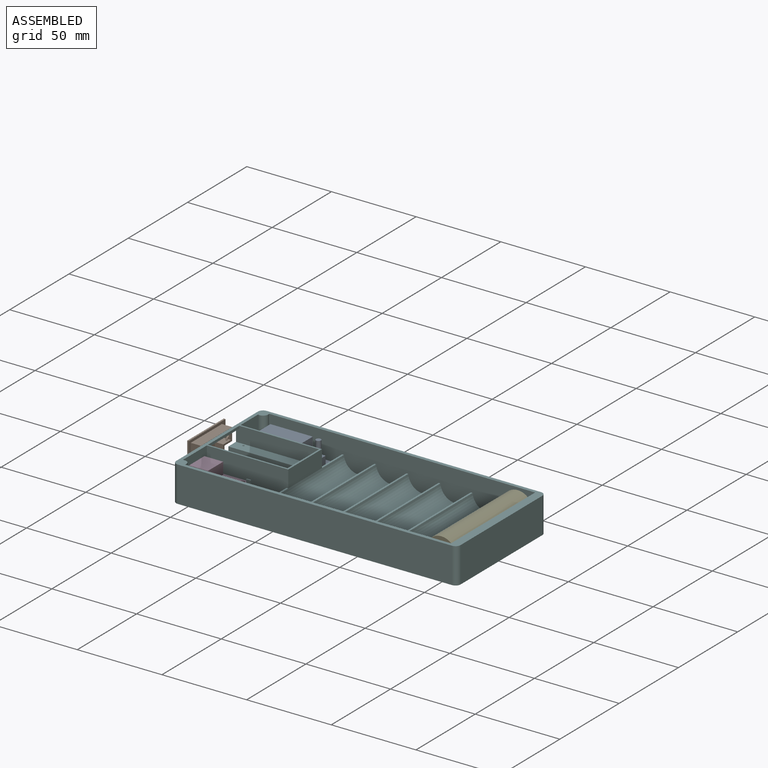
[diagram: assembled view]
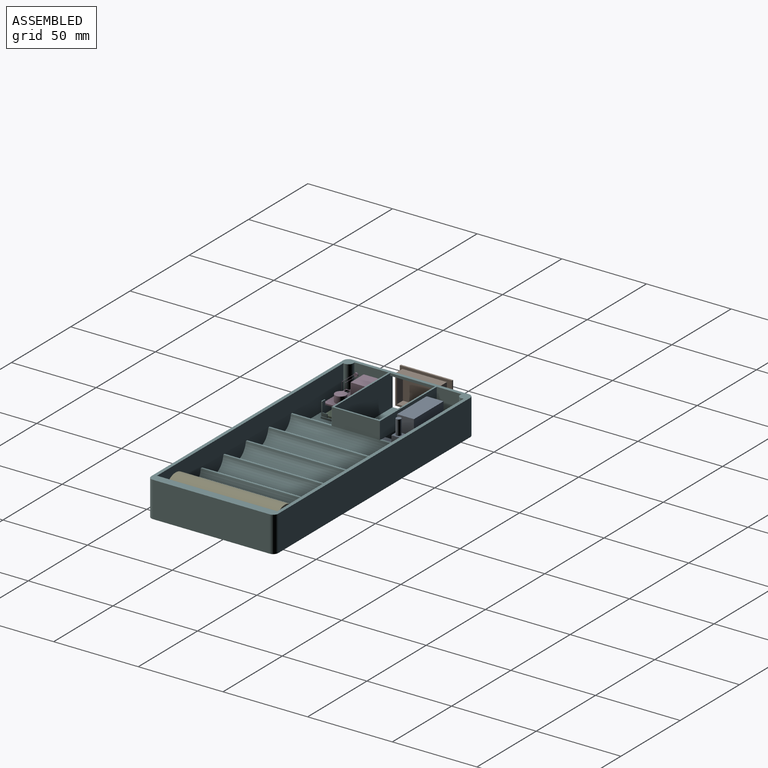
[diagram: assembled view, second angle]
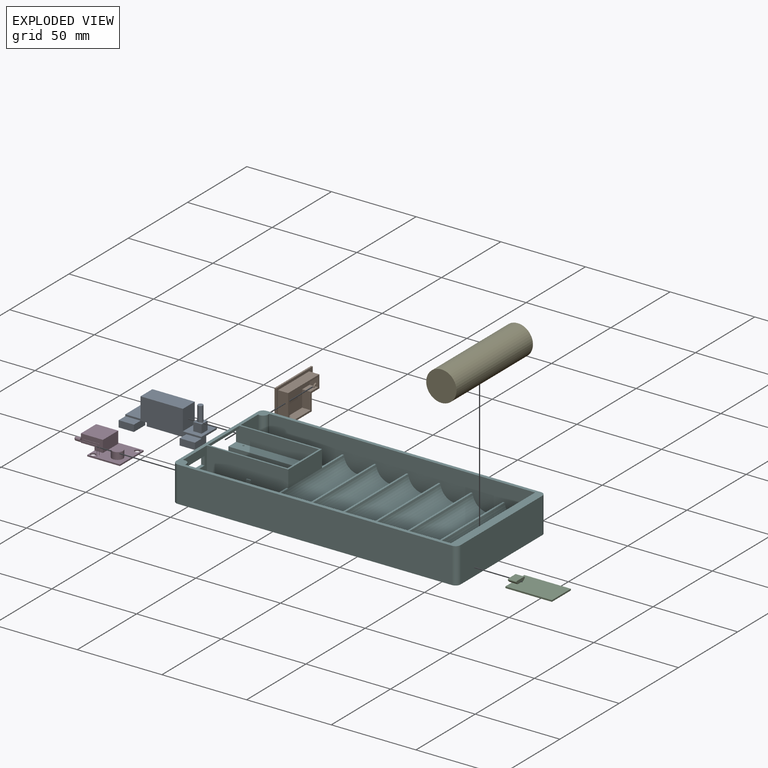
[diagram: exploded view]
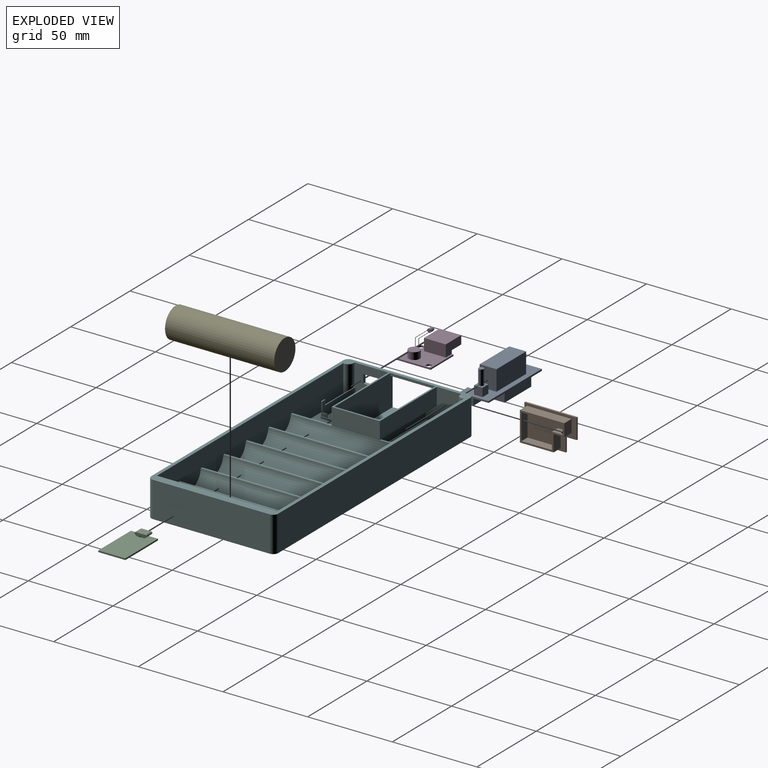
[diagram: exploded view, second angle]
ASSEMBLY  parts=6 mates=9
PART A: 31 faces, bbox 45x18.6x19.8 mm
  f0: plane 45x13mm, normal (0,0,1), area 310mm2, adj f2,f3,f4,f5,f20,f21,f22,f24
  f1: plane 45x13mm, normal (0,0,-1), area 337.5mm2, adj f2,f3,f4,f5,f6,f7,f8,f12
  f2: plane 45x13mm, normal (0,-1,0), area 345mm2, adj f0,f1,f3,f5,f10,f15,f20,f21
  f3: plane 18.6x4.9mm, normal (1,0,0), area 50.4mm2, adj f0,f1,f2,f4,f10,f11,f13,f14
  f4: plane 45x6mm, normal (0,1,0), area 157.5mm2, adj f0,f1,f3,f5,f6,f7,f9
  f5: plane 18.6x4.9mm, normal (-1,0,0), area 50.4mm2, adj f0,f1,f2,f4,f15,f16,f18,f19
  f6: plane 7.8x5mm, normal (-1,0,0), area 39mm2, adj f1,f4,f8,f9
  f7: plane 7.8x5mm, normal (1,0,0), area 39mm2, adj f1,f4,f8,f9
  f8: plane 22.5x5mm, normal (0,-1,0), area 112.5mm2, adj f1,f6,f7,f9
  f9: plane 22.5x7.8mm, normal (0,0,-1), area 175.5mm2, adj f4,f6,f7,f8
  f10: plane 9x5.6mm, normal (0,0,1), area 50.4mm2, adj f2,f3,f11,f12
  f11: plane 9x3.9mm, normal (0,-1,0), area 35.1mm2, adj f3,f10,f12,f14
  f12: plane 9.6x3.9mm, normal (-1,0,0), area 37.4mm2, adj f1,f10,f11,f13,f14
  f13: plane 9x3.9mm, normal (0,1,0), area 35.1mm2, adj f1,f3,f12,f14
  f14: plane 9.6x9mm, normal (0,0,-1), area 86.4mm2, adj f3,f11,f12,f13
  f15: plane 9x5.6mm, normal (0,0,1), area 50.4mm2, adj f2,f5,f17,f18
  f16: plane 9x3.9mm, normal (0,1,0), area 35.1mm2, adj f1,f5,f17,f19
  f17: plane 9.6x3.9mm, normal (1,0,0), area 37.4mm2, adj f1,f15,f16,f18,f19
  f18: plane 9x3.9mm, normal (0,-1,0), area 35.1mm2, adj f5,f15,f17,f19
  f19: plane 9.6x9mm, normal (0,0,-1), area 86.4mm2, adj f5,f16,f17,f18
  f20: plane 12x10mm, normal (-1,0,0), area 120mm2, adj f0,f2,f22,f23
  f21: plane 12x10mm, normal (1,0,0), area 120mm2, adj f0,f2,f22,f23
  f22: plane 25x12mm, normal (0,1,0), area 300mm2, adj f0,f20,f21,f23
  f23: plane 25x10mm, normal (0,0,1), area 250mm2, adj f2,f20,f21,f22
  f24: plane 5x5mm, normal (0,-1,0), area 25mm2, adj f0,f25,f27,f28
  f25: plane 5x5mm, normal (1,0,0), area 25mm2, adj f0,f24,f26,f28
  f26: plane 5x5mm, normal (0,1,0), area 25mm2, adj f0,f25,f27,f28
  f27: plane 5x5mm, normal (-1,0,0), area 25mm2, adj f0,f24,f26,f28
  f28: plane 5x5mm, normal (0,0,1), area 17.9mm2, adj f24,f25,f26,f27,f29
  f29: cylinder r=1.5mm len=8.8mm, axis (0,0,-1), area 82.9mm2, adj f28,f30
  f30: plane 3x3mm, normal (0,0,1), area 7.1mm2, adj f29
PART B: 23 faces, bbox 30.8x7x20.3 mm
  f0: plane 26.3x17.3mm, normal (0,1,0), area 83.2mm2, adj f1,f2,f3,f4,f5,f6,f7,f8
  f1: plane 19.9x6mm, normal (0,0,-1), area 119.4mm2, adj f0,f2,f6,f22
  f2: plane 17.3x6mm, normal (1,0,0), area 103.8mm2, adj f0,f1,f3,f22
  f3: plane 26.3x6mm, normal (0,0,1), area 157.8mm2, adj f0,f2,f4,f22
  f4: plane 7.5x6mm, normal (-1,0,0), area 45mm2, adj f0,f3,f5,f22
  f5: plane 6.4x6mm, normal (0,0,-1), area 38.4mm2, adj f0,f4,f6,f22
  f6: plane 9.8x6mm, normal (-1,0,0), area 58.8mm2, adj f0,f1,f5,f22
  f7: plane 17.9x5mm, normal (0,0,1), area 89.5mm2, adj f0,f8,f12,f13
  f8: plane 15.3x5mm, normal (-1,0,0), area 76.5mm2, adj f0,f7,f9,f13
  f9: plane 24.3x5mm, normal (0,0,-1), area 121.5mm2, adj f0,f8,f10,f13
  f10: plane 5.5x5mm, normal (1,0,0), area 26.8mm2, adj f0,f9,f11,f13,f14
  f11: plane 6.4x5mm, normal (0,0,1), area 31.3mm2, adj f0,f10,f12,f13,f14
  f12: plane 9.8x5mm, normal (1,0,0), area 49mm2, adj f0,f7,f11,f13
  f13: plane 24.3x15.3mm, normal (0,1,0), area 309.1mm2, adj f7,f8,f9,f10,f11,f12
  f14: torus R=1.48mm, axis (0,1,0), area 7.1mm2, adj f10,f11
  f15: plane 12x1mm, normal (-1,0,0), area 12mm2, adj f16,f20,f21,f22
  f16: plane 6.4x1mm, normal (0,0,-1), area 6.4mm2, adj f15,f17,f21,f22
  f17: plane 8.3x1mm, normal (-1,0,0), area 8.3mm2, adj f16,f18,f21,f22
  f18: plane 24.4x1mm, normal (0,0,-1), area 24.4mm2, adj f17,f19,f21,f22
  f19: plane 20.3x1mm, normal (1,0,0), area 20.3mm2, adj f18,f20,f21,f22
  f20: plane 30.8x1mm, normal (0,0,1), area 30.8mm2, adj f15,f19,f21,f22
  f21: plane 30.8x20.3mm, normal (0,-1,0), area 572.1mm2, adj f15,f16,f17,f18,f19,f20
  f22: plane 30.8x20.3mm, normal (0,1,0), area 179.9mm2, adj f1,f2,f3,f4,f5,f6,f15,f16
PART C: 20 faces, bbox 29.1x16x2.9 mm
  f0: plane 27.5x16mm, normal (0,0,1), area 422.6mm2, adj f1,f2,f3,f4,f6,f7,f8,f11
  f1: plane 16x0.9mm, normal (1,0,0), area 14.4mm2, adj f0,f2,f4,f5
  f2: plane 27.5x0.9mm, normal (0,1,0), area 24.7mm2, adj f0,f1,f3,f5
  f3: plane 16x0.9mm, normal (-1,0,0), area 14.4mm2, adj f0,f2,f4,f5,f10
  f4: plane 27.5x0.9mm, normal (0,-1,0), area 24.8mm2, adj f0,f1,f3,f5
  f5: plane 27.5x16mm, normal (0,0,-1), area 440mm2, adj f1,f2,f3,f4
  f6: plane 4.67x2mm, normal (1,0,0), area 9.3mm2, adj f0,f7,f8,f9
  f7: plane 2x0.1mm, normal (0,1,0), area 0.2mm2, adj f0,f6,f9,f11
  f8: plane 2x0.1mm, normal (0,-1,0), area 0.2mm2, adj f0,f6,f9,f19
  f9: plane 6x5.1mm, normal (0,0,1), area 30.5mm2, adj f6,f7,f8,f11,f14,f15,f18,f19
  f10: plane 5x1.62mm, normal (0,0,-1), area 8.1mm2, adj f3,f12,f17,f18
  f11: plane 2x1.17mm, normal (1,0,0), area 1.7mm2, adj f0,f7,f9,f15,f16,f17
  f12: plane 5x1mm, normal (0,-0.71,-0.71), area 7.1mm2, adj f0,f10,f13,f18,f19
  f13: plane 5x0.6mm, normal (0,-1,0), area 3mm2, adj f12,f14,f18,f19
  f14: plane 5x0.5mm, normal (0,-0.62,0.78), area 3.2mm2, adj f9,f13,f18,f19
  f15: plane 5x0.5mm, normal (0,0.62,0.78), area 3.2mm2, adj f9,f11,f16,f18
  f16: plane 5x0.6mm, normal (0,1,0), area 3mm2, adj f11,f15,f17,f18
  f17: plane 5x1mm, normal (0,0.71,-0.71), area 7.1mm2, adj f0,f10,f11,f16,f18
  f18: plane 7x2mm, normal (-1,0,0), area 12.8mm2, adj f9,f10,f12,f13,f14,f15,f16,f17
  f19: plane 2x1.17mm, normal (1,0,0), area 1.7mm2, adj f0,f8,f9,f12,f13,f14
PART D: 48 faces, bbox 28x20x7.9 mm
  f0: plane 5.8x0.1mm, normal (-1,0,0), area 0.6mm2, adj f2,f28,f33,f35
  f1: plane 5.8x0.1mm, normal (-1,0,0), area 0.6mm2, adj f2,f27,f29,f31
  f2: plane 20x19.3mm, normal (0,0,1), area 274.1mm2, adj f0,f1,f3,f4,f5,f6,f7,f8
  f3: plane 19.3x0.85mm, normal (0,1,0), area 16.4mm2, adj f2,f4,f8,f9
  f4: plane 20.02x0.87mm, normal (-1,0,0), area 17mm2, adj f2,f3,f5,f9,f12
  f5: plane 19.3x0.85mm, normal (0,-1,0), area 16.4mm2, adj f2,f4,f8,f9
  f6: cylinder r=1.5mm len=3mm, axis (0,0,-1), area 8mm2, adj f2,f9
  f7: cylinder r=1.5mm len=3mm, axis (0,0,-1), area 8mm2, adj f2,f9
  f8: plane 20x0.85mm, normal (1,0,0), area 17mm2, adj f2,f3,f5,f9
  f9: plane 20x19.3mm, normal (0,0,-1), area 371.9mm2, adj f3,f4,f5,f6,f7,f8
  f10: plane 12.9x7mm, normal (1,0,0), area 90.3mm2, adj f2,f11,f13,f16
  f11: plane 13x7mm, normal (0,1,0), area 75mm2, adj f2,f10,f12,f14,f15,f16
  f12: plane 12.92x2.02mm, normal (-1,0,0), area 25.8mm2, adj f4,f11,f13,f14
  f13: plane 13x7mm, normal (0,-1,0), area 75mm2, adj f2,f10,f12,f14,f15,f16
  f14: plane 12.9x8.01mm, normal (0,0,-1), area 103.3mm2, adj f11,f12,f13,f15
  f15: plane 12.9x5mm, normal (-1,0,0), area 64.5mm2, adj f11,f13,f14,f16
  f16: plane 13x12.9mm, normal (0,0,1), area 167.7mm2, adj f10,f11,f13,f15
  f17: cylinder r=3.25mm len=6.5mm, axis (0,0,-1), area 84.7mm2, adj f2,f18
  f18: plane 6.5x6.5mm, normal (0,0,1), area 33.2mm2, adj f17
  f19: plane 10.15x5.95mm, normal (0,1,0), area 1.6mm2, adj f2,f29,f30,f41,f42,f45
  f20: plane 10.15x5.95mm, normal (0,-1,0), area 1.6mm2, adj f2,f31,f32,f43,f44,f46
  f21: plane 6x0.1mm, normal (1,0,0), area 0.6mm2, adj f2,f22,f42,f44
  f22: plane 10.2x0.1mm, normal (0,0,1), area 1mm2, adj f21,f41,f43,f46
  f23: plane 6x0.1mm, normal (1,0,0), area 0.6mm2, adj f2,f26,f38,f40
  f24: plane 10.15x5.95mm, normal (0,1,0), area 1.6mm2, adj f2,f33,f34,f37,f38,f46
  f25: plane 10.15x5.95mm, normal (0,-1,0), area 1.6mm2, adj f2,f35,f36,f39,f40,f45
  f26: plane 10.2x0.1mm, normal (0,0,1), area 1mm2, adj f23,f37,f39,f46
  f27: plane 10x0.1mm, normal (0,0,-1), area 1mm2, adj f1,f30,f32,f46
  f28: plane 10x0.1mm, normal (0,0,-1), area 1mm2, adj f0,f34,f36,f46
  f29: cylinder r=0.05mm len=5.85mm, axis (0,0,1), area 0.5mm2, adj f1,f2,f19,f30
  f30: cylinder r=0.05mm len=10.05mm, axis (-1,0,0), area 0.8mm2, adj f19,f27,f29,f46
  f31: cylinder r=0.05mm len=5.85mm, axis (0,0,-1), area 0.5mm2, adj f1,f2,f20,f32
  f32: cylinder r=0.05mm len=10.05mm, axis (1,0,0), area 0.8mm2, adj f20,f27,f31,f46
  f33: cylinder r=0.05mm len=5.85mm, axis (0,0,-1), area 0.5mm2, adj f0,f2,f24,f34
  f34: cylinder r=0.05mm len=10.05mm, axis (1,0,0), area 0.8mm2, adj f24,f28,f33,f46
  f35: cylinder r=0.05mm len=5.85mm, axis (0,0,1), area 0.5mm2, adj f0,f2,f25,f36
  f36: cylinder r=0.05mm len=10.05mm, axis (-1,0,0), area 0.8mm2, adj f25,f28,f35,f46
  f37: cylinder r=0.05mm len=10.2mm, axis (1,0,0), area 0.8mm2, adj f24,f26,f38,f46
  f38: cylinder r=0.05mm len=6mm, axis (0,0,1), area 0.5mm2, adj f2,f23,f24,f37
  f39: cylinder r=0.05mm len=10.2mm, axis (-1,0,0), area 0.8mm2, adj f25,f26,f40,f46
  f40: cylinder r=0.05mm len=6mm, axis (0,0,-1), area 0.5mm2, adj f2,f23,f25,f39
  f41: cylinder r=0.05mm len=10.2mm, axis (1,0,0), area 0.8mm2, adj f19,f22,f42,f46
  f42: cylinder r=0.05mm len=6mm, axis (0,0,-1), area 0.5mm2, adj f2,f19,f21,f41
  f43: cylinder r=0.05mm len=10.2mm, axis (-1,0,0), area 0.8mm2, adj f20,f22,f44,f46
  f44: cylinder r=0.05mm len=6mm, axis (0,0,1), area 0.5mm2, adj f2,f20,f21,f43
  f45: cylinder r=1.1mm len=2.5mm, axis (1,0,0), area 17.3mm2, adj f19,f25,f46,f47
  f46: plane 2.21x2.21mm, normal (1,0,0), area 3.7mm2, adj f20,f22,f24,f26,f27,f28,f30,f32
  f47: sphere r=1.1mm, area 7.6mm2, adj f45
PART E: 3 faces, bbox 17.9x64.5x17.9 mm
  f0: cylinder r=8.95mm len=64.5mm, axis (0,1,0), area 3627.1mm2, adj f1,f2
  f1: plane 17.9x17.9mm, normal (0,-1,0), area 251.6mm2, adj f0
  f2: plane 17.9x17.9mm, normal (0,1,0), area 251.6mm2, adj f0
PART F: 82 faces, bbox 168x75x21 mm
  f0: plane 25.4x0.6mm, normal (0,0,1), area 15.2mm2, adj f4,f16,f60,f80
  f1: plane 25.4x0.6mm, normal (0,0,1), area 15mm2, adj f15,f16,f56,f58,f78
  f2: plane 28x16.5mm, normal (0,0,1), area 459.6mm2, adj f4,f16,f58,f69,f70,f72,f73,f75
  f3: plane 47x24mm, normal (0,0,1), area 609.8mm2, adj f14,f15,f16,f19,f56,f60,f61,f76
  f4: plane 28x9mm, normal (0,-1,0), area 174.6mm2, adj f0,f2,f16,f59,f72,f74,f80,f81
  f5: plane 26.5x1.5mm, normal (1,0,0), area 39.8mm2, adj f7,f20,f62,f67
  f6: plane 49x6.5mm, normal (0,0,1), area 317.7mm2, adj f7,f8,f12,f17,f68
  f7: plane 49x9.1mm, normal (0,-1,0), area 442.9mm2, adj f5,f6,f12,f17,f20,f67
  f8: plane 49x9.9mm, normal (0,-1,0), area 485.1mm2, adj f6,f12,f13,f17
  f9: plane 21.17x19mm, normal (1,0,0), area 336.6mm2, adj f11,f20,f43,f63,f64,f65
  f10: plane 18.5x1.06mm, normal (0,0,1), area 19.5mm2, adj f18,f27,f29,f65
  f11: plane 47x25mm, normal (0,0,1), area 1161mm2, adj f9,f18,f27,f43,f63
  f12: plane 26.5x19mm, normal (-1,0,0), area 439.2mm2, adj f6,f7,f8,f13,f20,f62
  f13: plane 49x20mm, normal (0,0,1), area 980mm2, adj f8,f12,f17,f62
  f14: plane 24x8.9mm, normal (-1,0,0), area 213.6mm2, adj f3,f19,f28,f61
  f15: cylinder r=3mm len=19mm, axis (0,0,-1), area 116mm2, adj f1,f3,f16,f19,f20,f56
  f16: plane 20.17x19mm, normal (1,0,0), area 294.6mm2, adj f0,f1,f2,f3,f4,f15,f20,f44
  f17: plane 69x21mm, normal (-1,0,0), area 968.1mm2, adj f6,f7,f8,f13,f20,f24,f39,f40
  f18: plane 157.17x19mm, normal (0,-1,0), area 2658.5mm2, adj f10,f11,f20,f25,f26,f27,f29,f30
  f19: plane 157.17x19mm, normal (0,1,0), area 2658.5mm2, adj f3,f14,f15,f20,f25,f26,f28,f29
  f20: plane 168x75mm, normal (0,0,1), area 1313.3mm2, adj f5,f7,f9,f12,f15,f16,f17,f18
  f21: plane 162x21mm, normal (0,1,0), area 3402mm2, adj f20,f24,f39,f42
  f22: plane 162x21mm, normal (0,-1,0), area 3402mm2, adj f20,f24,f40,f41
  f23: plane 69x21mm, normal (1,0,0), area 1449mm2, adj f20,f24,f41,f42
  f24: plane 168x75mm, normal (0,0,-1), area 12592.3mm2, adj f17,f21,f22,f23,f39,f40,f41,f42
  f25: cylinder r=9mm len=71mm, axis (0,-1,0), area 1906.7mm2, adj f18,f19,f26,f37
  f26: plane 71x10.1mm, normal (-1,0,0), area 717.1mm2, adj f18,f19,f20,f25
  f27: plane 25x8.9mm, normal (-1,0,0), area 222.5mm2, adj f10,f11,f18,f63,f64
  f28: plane 24x1.06mm, normal (0,0,1), area 25.3mm2, adj f14,f19,f29,f61
  f29: cylinder r=9mm len=71mm, axis (0,-1,0), area 1906.7mm2, adj f10,f18,f19,f28,f30,f66
  f30: plane 71x1.06mm, normal (0,0,1), area 75mm2, adj f18,f19,f29,f31
  f31: cylinder r=9mm len=71mm, axis (0,-1,0), area 1906.7mm2, adj f18,f19,f30,f32
  f32: plane 71x1.06mm, normal (0,0,1), area 75mm2, adj f18,f19,f31,f33
  f33: cylinder r=9mm len=71mm, axis (0,-1,0), area 1906.7mm2, adj f18,f19,f32,f34
  f34: plane 71x1.06mm, normal (0,0,1), area 75mm2, adj f18,f19,f33,f35
  f35: cylinder r=9mm len=71mm, axis (0,-1,0), area 1906.7mm2, adj f18,f19,f34,f36
  f36: plane 71x1.06mm, normal (0,0,1), area 75mm2, adj f18,f19,f35,f38
  f37: plane 71x1.06mm, normal (0,0,1), area 75mm2, adj f18,f19,f25,f38
  f38: cylinder r=9mm len=71mm, axis (0,-1,0), area 1906.7mm2, adj f18,f19,f36,f37
  f39: cylinder r=3mm len=21mm, axis (0,0,1), area 99mm2, adj f17,f20,f21,f24
  f40: cylinder r=3mm len=21mm, axis (0,0,-1), area 99mm2, adj f17,f20,f22,f24
  f41: cylinder r=3mm len=21mm, axis (0,0,1), area 99mm2, adj f20,f22,f23,f24
  f42: cylinder r=3mm len=21mm, axis (0,0,-1), area 99mm2, adj f20,f21,f23,f24
  f43: cylinder r=3mm len=19mm, axis (0,0,-1), area 128.3mm2, adj f9,f11,f18,f20
  f44: cylinder r=0.66mm len=2mm, axis (-1,0,0), area 3.1mm2, adj f16,f17,f45,f49
  f45: plane 6.03x2mm, normal (0,0,-1), area 12.1mm2, adj f16,f17,f44,f46
  f46: cylinder r=0.66mm len=2mm, axis (-1,0,0), area 3.1mm2, adj f16,f17,f45,f47
  f47: plane 2x0.91mm, normal (0,-0.75,0.67), area 2.4mm2, adj f16,f17,f46,f48
  f48: cylinder r=0.66mm len=2mm, axis (-1,0,0), area 1.1mm2, adj f16,f17,f47,f50
  f49: plane 2x0.91mm, normal (0,0.75,0.67), area 2.4mm2, adj f16,f17,f44,f51
  f50: plane 4.41x2mm, normal (0,0,1), area 8.8mm2, adj f16,f17,f48,f51
  f51: cylinder r=0.66mm len=2mm, axis (-1,0,0), area 1.1mm2, adj f16,f17,f49,f50
  f52: plane 13.1x2mm, normal (0,0,1), area 26.2mm2, adj f16,f17,f53,f55
  f53: plane 5.1x2mm, normal (0,1,0), area 10.2mm2, adj f16,f17,f52,f54
  f54: plane 13.1x2mm, normal (0,0,-1), area 26.2mm2, adj f16,f17,f53,f55
  f55: plane 5.1x2mm, normal (0,-1,0), area 10.2mm2, adj f16,f17,f52,f54
  f56: plane 26.5x9mm, normal (0,-1,0), area 164.3mm2, adj f1,f3,f15,f57,f76,f77,f78,f79
  f57: plane 8x3.6mm, normal (1,0,0), area 10.8mm2, adj f56,f58,f69,f71,f77,f79
  f58: plane 28x9mm, normal (0,1,0), area 174.6mm2, adj f1,f2,f16,f57,f70,f71,f78,f79
  f59: plane 8x3.6mm, normal (1,0,0), area 10.8mm2, adj f4,f60,f73,f74,f77,f81
  f60: plane 28.5x9mm, normal (0,1,0), area 176.3mm2, adj f0,f3,f16,f59,f76,f77,f80,f81
  f61: plane 48.06x19mm, normal (0,-1,0), area 903.7mm2, adj f3,f14,f16,f20,f28,f66
  f62: plane 49x19mm, normal (0,1,0), area 928mm2, adj f5,f12,f13,f17,f20,f67
  f63: plane 47x8.9mm, normal (0,1,0), area 418.3mm2, adj f9,f11,f27,f64
  f64: plane 47x6.5mm, normal (0,0,-1), area 304.7mm2, adj f9,f27,f63,f65,f68
  f65: plane 48.06x10.1mm, normal (0,1,0), area 485.4mm2, adj f9,f10,f20,f64,f66
  f66: plane 28.5x10.1mm, normal (1,0,0), area 287.9mm2, adj f20,f29,f61,f65
  f67: plane 26.5x2mm, normal (0,0,-1), area 53mm2, adj f5,f7,f17,f62
  f68: cylinder r=0.5mm len=1mm, axis (0,0,1), area 3.1mm2, adj f6,f64
  f69: plane 3x0.4mm, normal (0,1,0), area 1.2mm2, adj f2,f57,f70,f71,f75
  f70: plane 3x3mm, normal (-1,0,0), area 9mm2, adj f2,f58,f69,f71
  f71: plane 3x0.4mm, normal (0,0,1), area 1.2mm2, adj f57,f58,f69,f70
  f72: plane 3x3mm, normal (-1,0,0), area 9mm2, adj f2,f4,f73,f74
  f73: plane 3x0.4mm, normal (0,-1,0), area 1.2mm2, adj f2,f59,f72,f74,f75
  f74: plane 3x0.4mm, normal (0,0,1), area 1.2mm2, adj f4,f59,f72,f73
  f75: plane 10.5x1mm, normal (-1,0,0), area 10.5mm2, adj f2,f69,f73,f77
  f76: plane 17.7x1mm, normal (1,0,0), area 17.7mm2, adj f3,f56,f60,f77
  f77: plane 17.7x0.5mm, normal (0,0,1), area 8.9mm2, adj f56,f57,f59,f60,f75,f76
  f78: plane 3x0.6mm, normal (-1,0,0), area 1.8mm2, adj f1,f56,f58,f79
  f79: plane 2.6x0.6mm, normal (0,0,1), area 1.6mm2, adj f56,f57,f58,f78
  f80: plane 3x0.6mm, normal (-1,0,0), area 1.8mm2, adj f0,f4,f60,f81
  f81: plane 2.6x0.6mm, normal (0,0,1), area 1.6mm2, adj f4,f59,f60,f80
PLACE A t=(-7.38,114.86,35.88)mm
PLACE B rot(axis=(0,0,-1),90deg) t=(-63.52,86.42,30.88)mm
PLACE C t=(-25.82,82.15,31.85)mm
PLACE D t=(-28.02,64.52,37.03)mm
PLACE E t=(98.71,130.62,40.49)mm
PLACE F t=(112.68,59.42,28.88)mm
MATE cylindrical E.f0 <-> F.f25  axis (0,1,0) through (98.71,98.37,40.49)mm
MATE planar C.f3 <-> F.f16  axis (-1,0,0) through (-53.32,74.15,32.3)mm
MATE planar C.f9 <-> F.f45  axis (0,0,1) through (-52.4,74.15,34.75)mm
MATE planar D.f15 <-> F.f17  axis (-1,0,0) through (-55.32,77.07,42.38)mm
MATE planar B.f2 <-> F.f62  axis (0,-1,0) through (-60.52,86.42,39.53)mm
MATE planar A.f9 <-> F.f11  axis (0,0,-1) through (-32.13,123.96,30.88)mm
MATE planar B.f1 <-> F.f13  axis (0,0,-1) through (-60.52,96.37,30.88)mm
MATE planar D.f11 <-> F.f55  axis (0,1,0) through (-48.29,83.52,41.91)mm
MATE planar D.f14 <-> F.f52  axis (0,0,-1) through (-51.32,77.07,39.88)mm
